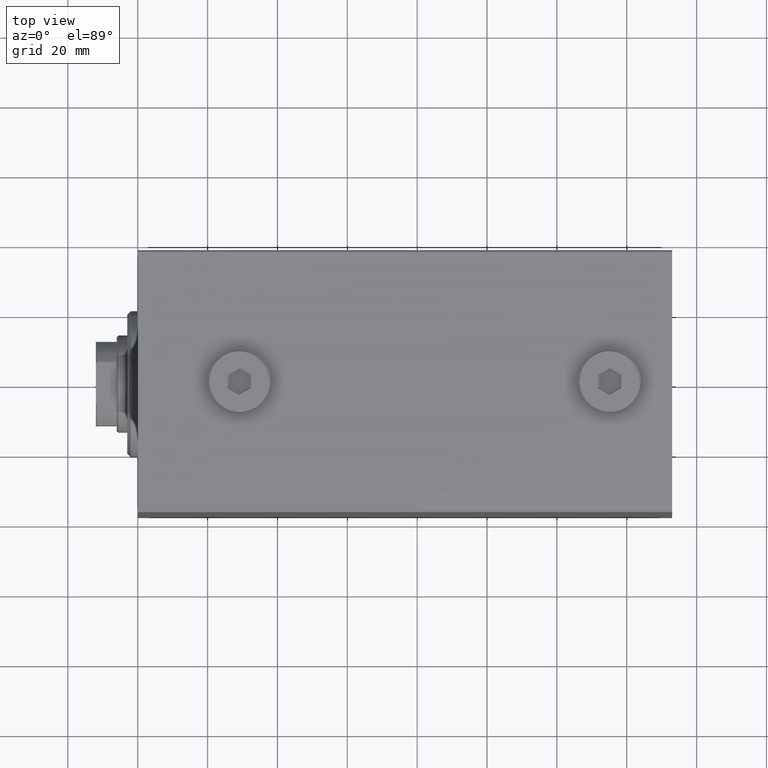
[diagram: clean part render]
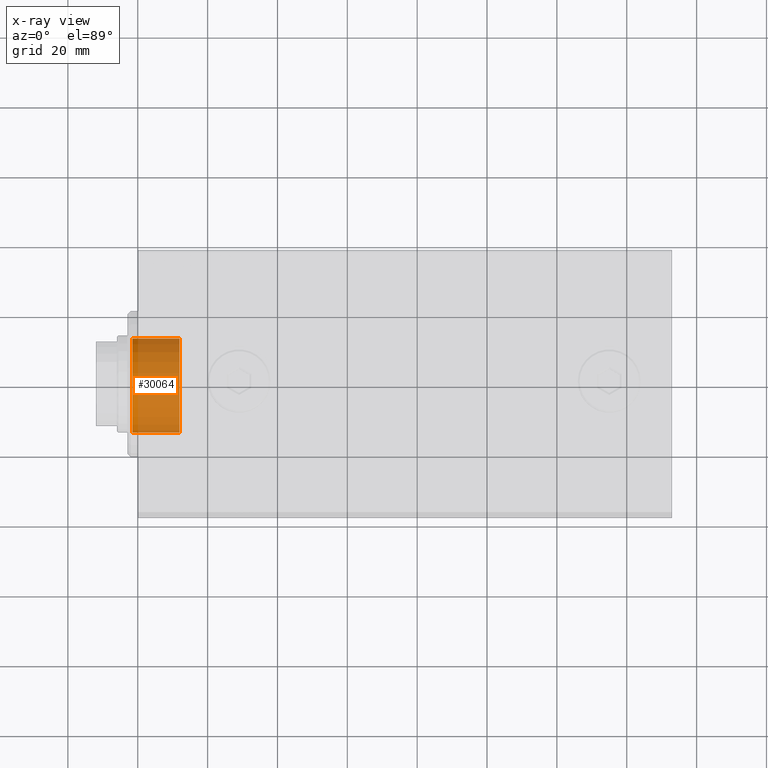
[diagram: x-ray — body ghosted, one internal face saturated and labeled with its STEP entity id]
A machine part, top view, then the same camera in x-ray: the body is ghosted and one INTERNAL B-rep face — a face not visible from any outside direction — is saturated and labeled: STEP entity #30064.
In plain terms, the highlighted cylindrical surface (partial cylindrical patch) has radius 14 mm, axis along (-1, 0, 0).
Its self-contained STEP definition (entity closure, byte-faithful):
#2202 = CARTESIAN_POINT ( 'NONE',  ( -12.00000000000000000, 0.000000000000000000, -14.00000000000000178 ) ) ;
#2459 = CARTESIAN_POINT ( 'NONE',  ( -12.00000000000000000, 0.000000000000000000, 0.000000000000000000 ) ) ;
#3368 = CIRCLE ( 'NONE', #42876, 14.00000000000000178 ) ;
#4742 = ORIENTED_EDGE ( 'NONE', *, *, #21280, .F. ) ;
#6806 = EDGE_CURVE ( 'NONE', #22158, #19057, #16691, .T. ) ;
#9429 = CARTESIAN_POINT ( 'NONE',  ( 1.499999999999999556, 0.000000000000000000, -14.00000000000000178 ) ) ;
#12823 = AXIS2_PLACEMENT_3D ( 'NONE', #34790, #41684, #45351 ) ;
#15073 = ORIENTED_EDGE ( 'NONE', *, *, #23223, .F. ) ;
#15728 = CARTESIAN_POINT ( 'NONE',  ( -12.00000000000000000, 1.714505518806294835E-15, 14.00000000000000178 ) ) ;
#16691 = LINE ( 'NONE', #29996, #18862 ) ;
#16876 = CARTESIAN_POINT ( 'NONE',  ( 1.499999999999999556, 1.714505518806294835E-15, 14.00000000000000178 ) ) ;
#17048 = ORIENTED_EDGE ( 'NONE', *, *, #29270, .T. ) ;
#17113 = DIRECTION ( 'NONE',  ( 1.000000000000000000, -0.000000000000000000, -0.000000000000000000 ) ) ;
#17982 = ORIENTED_EDGE ( 'NONE', *, *, #6806, .T. ) ;
#18862 = VECTOR ( 'NONE', #33651, 1000.000000000000000 ) ;
#19057 = VERTEX_POINT ( 'NONE', #16876 ) ;
#19768 = DIRECTION ( 'NONE',  ( 1.000000000000000000, 0.000000000000000000, 0.000000000000000000 ) ) ;
#20220 = DIRECTION ( 'NONE',  ( 0.000000000000000000, 0.000000000000000000, -1.000000000000000000 ) ) ;
#21280 = EDGE_CURVE ( 'NONE', #43921, #21963, #30843, .T. ) ;
#21963 = VERTEX_POINT ( 'NONE', #9429 ) ;
#22158 = VERTEX_POINT ( 'NONE', #15728 ) ;
#23223 = EDGE_CURVE ( 'NONE', #22158, #43921, #36948, .T. ) ;
#26134 = FACE_OUTER_BOUND ( 'NONE', #34206, .T. ) ;
#28216 = CARTESIAN_POINT ( 'NONE',  ( -12.00000000000000000, 0.000000000000000000, -14.00000000000000178 ) ) ;
#29270 = EDGE_CURVE ( 'NONE', #19057, #21963, #3368, .T. ) ;
#29353 = VECTOR ( 'NONE', #43910, 1000.000000000000000 ) ;
#29730 = AXIS2_PLACEMENT_3D ( 'NONE', #2459, #17113, #31088 ) ;
#29996 = CARTESIAN_POINT ( 'NONE',  ( -12.00000000000000000, 1.714505518806294835E-15, 14.00000000000000178 ) ) ;
#30064 = ADVANCED_FACE ( 'NONE', ( #26134 ), #41196, .F. ) ;
#30307 = CARTESIAN_POINT ( 'NONE',  ( 1.499999999999999556, 0.000000000000000000, 0.000000000000000000 ) ) ;
#30843 = LINE ( 'NONE', #2202, #29353 ) ;
#31088 = DIRECTION ( 'NONE',  ( 0.000000000000000000, 0.000000000000000000, -1.000000000000000000 ) ) ;
#33651 = DIRECTION ( 'NONE',  ( 1.000000000000000000, -0.000000000000000000, -0.000000000000000000 ) ) ;
#34206 = EDGE_LOOP ( 'NONE', ( #15073, #17982, #17048, #4742 ) ) ;
#34790 = CARTESIAN_POINT ( 'NONE',  ( -12.00000000000000000, 0.000000000000000000, 0.000000000000000000 ) ) ;
#36948 = CIRCLE ( 'NONE', #12823, 14.00000000000000178 ) ;
#41196 = CYLINDRICAL_SURFACE ( 'NONE', #29730, 14.00000000000000178 ) ;
#41684 = DIRECTION ( 'NONE',  ( 1.000000000000000000, 0.000000000000000000, 0.000000000000000000 ) ) ;
#42876 = AXIS2_PLACEMENT_3D ( 'NONE', #30307, #19768, #20220 ) ;
#43910 = DIRECTION ( 'NONE',  ( 1.000000000000000000, -0.000000000000000000, -0.000000000000000000 ) ) ;
#43921 = VERTEX_POINT ( 'NONE', #28216 ) ;
#45351 = DIRECTION ( 'NONE',  ( 0.000000000000000000, 0.000000000000000000, -1.000000000000000000 ) ) ;